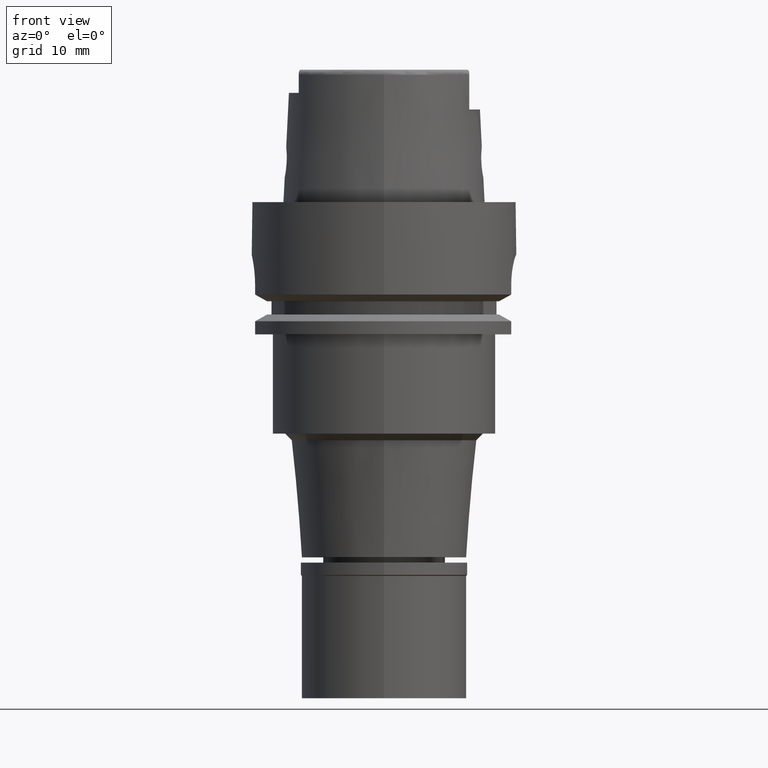
[diagram: clean part render]
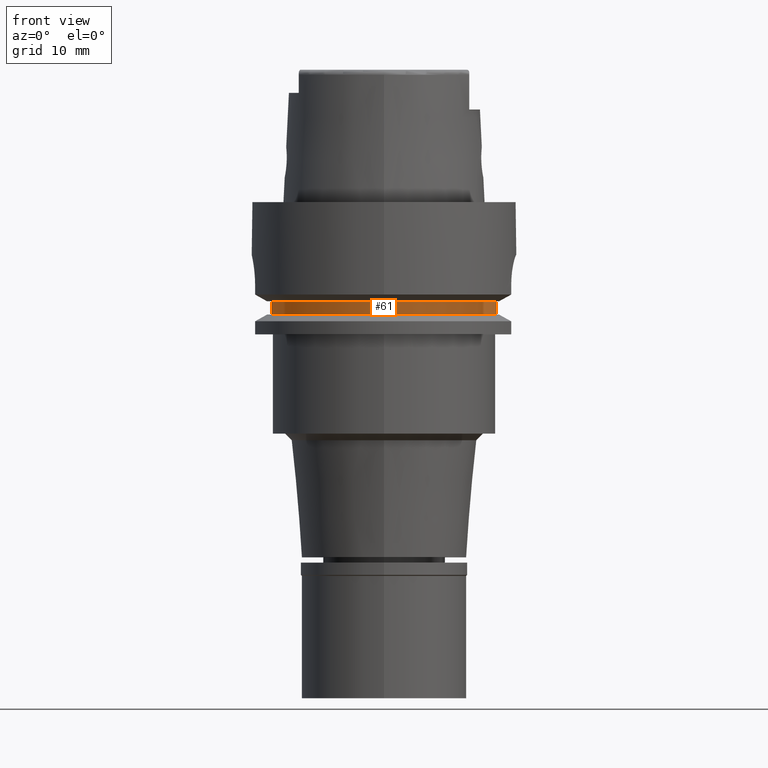
[diagram: same view with one face highlighted and labeled with its STEP entity id]
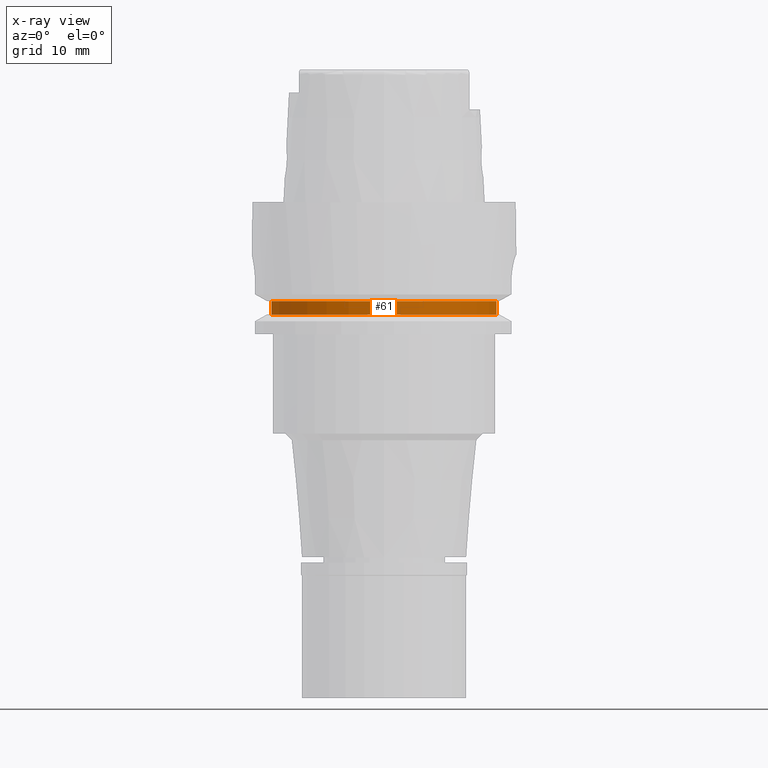
[diagram: x-ray of the same camera — body ghosted, the highlighted face saturated]
A machine part, front view. The second image highlights one B-rep face of the part: STEP entity #61.
The next image is the same camera in x-ray: the body ghosted, the highlighted face saturated — about 0% of this face is hidden behind the body in this view.
In plain terms, the highlighted cylindrical surface (partial cylindrical patch) has radius 17.4 mm, axis along (0, 0, -1).
Its self-contained STEP definition (entity closure, byte-faithful):
#31 = VERTEX_POINT ( 'NONE', #101 ) ;
#61 = ADVANCED_FACE ( 'NONE', ( #1823 ), #5149, .T. ) ;
#101 = CARTESIAN_POINT ( 'NONE',  ( -17.00000000000000000, -3.709447398197999846, -17.00000000000000000 ) ) ;
#115 = CIRCLE ( 'NONE', #3270, 17.39999999999999858 ) ;
#238 = LINE ( 'NONE', #1890, #570 ) ;
#428 = EDGE_CURVE ( 'NONE', #31, #1064, #4101, .T. ) ;
#541 = CARTESIAN_POINT ( 'NONE',  ( 0.0000000000000000000, 1.523950476858999865E-14, 24.44000000000000128 ) ) ;
#570 = VECTOR ( 'NONE', #4797, 1000.000000000000000 ) ;
#713 = CIRCLE ( 'NONE', #4846, 17.40000000000000213 ) ;
#831 = DIRECTION ( 'NONE',  ( 0.0000000000000000000, -1.000000000000000000, 0.0000000000000000000 ) ) ;
#1064 = VERTEX_POINT ( 'NONE', #5123 ) ;
#1128 = VERTEX_POINT ( 'NONE', #4024 ) ;
#1201 = EDGE_CURVE ( 'NONE', #1128, #2367, #238, .T. ) ;
#1440 = VECTOR ( 'NONE', #1616, 1000.000000000000000 ) ;
#1454 = ORIENTED_EDGE ( 'NONE', *, *, #428, .F. ) ;
#1616 = DIRECTION ( 'NONE',  ( 0.0000000000000000000, -3.730349362740999923E-14, 1.000000000000000000 ) ) ;
#1685 = CARTESIAN_POINT ( 'NONE',  ( 17.00000000000000000, -3.709447398197999846, -17.00000000000000000 ) ) ;
#1823 = FACE_OUTER_BOUND ( 'NONE', #5299, .T. ) ;
#1890 = CARTESIAN_POINT ( 'NONE',  ( 17.00000000000000000, -3.709447398197999846, -15.00000000000000000 ) ) ;
#2367 = VERTEX_POINT ( 'NONE', #1685 ) ;
#2436 = EDGE_CURVE ( 'NONE', #31, #2367, #713, .T. ) ;
#2593 = ORIENTED_EDGE ( 'NONE', *, *, #4279, .T. ) ;
#2967 = CARTESIAN_POINT ( 'NONE',  ( 0.0000000000000000000, 1.523950476858999865E-14, -17.00000000000000000 ) ) ;
#3270 = AXIS2_PLACEMENT_3D ( 'NONE', #4136, #4087, #831 ) ;
#3504 = DIRECTION ( 'NONE',  ( 0.0000000000000000000, 0.0000000000000000000, 1.000000000000000000 ) ) ;
#3916 = DIRECTION ( 'NONE',  ( 0.0000000000000000000, -1.000000000000000000, 0.0000000000000000000 ) ) ;
#4024 = CARTESIAN_POINT ( 'NONE',  ( 17.00000000000000000, -3.709447398197999846, -15.00000000000000000 ) ) ;
#4087 = DIRECTION ( 'NONE',  ( 0.0000000000000000000, 0.0000000000000000000, -1.000000000000000000 ) ) ;
#4101 = LINE ( 'NONE', #4475, #1440 ) ;
#4136 = CARTESIAN_POINT ( 'NONE',  ( 0.0000000000000000000, 1.523950476858999865E-14, -15.00000000000000000 ) ) ;
#4230 = ORIENTED_EDGE ( 'NONE', *, *, #2436, .T. ) ;
#4232 = ORIENTED_EDGE ( 'NONE', *, *, #1201, .F. ) ;
#4279 = EDGE_CURVE ( 'NONE', #1128, #1064, #115, .T. ) ;
#4304 = DIRECTION ( 'NONE',  ( -0.9770114942528667079, -0.2131866320803924297, 0.0000000000000000000 ) ) ;
#4475 = CARTESIAN_POINT ( 'NONE',  ( -17.00000000000000000, -3.709447398197999846, -17.00000000000000000 ) ) ;
#4797 = DIRECTION ( 'NONE',  ( 0.0000000000000000000, -3.663735981262999544E-14, -1.000000000000000000 ) ) ;
#4846 = AXIS2_PLACEMENT_3D ( 'NONE', #2967, #3504, #4304 ) ;
#5123 = CARTESIAN_POINT ( 'NONE',  ( -17.00000000000000000, -3.709447398197999846, -15.00000000000000000 ) ) ;
#5132 = AXIS2_PLACEMENT_3D ( 'NONE', #541, #5173, #3916 ) ;
#5149 = CYLINDRICAL_SURFACE ( 'NONE', #5132, 17.39999999999999858 ) ;
#5173 = DIRECTION ( 'NONE',  ( 0.0000000000000000000, 0.0000000000000000000, -1.000000000000000000 ) ) ;
#5299 = EDGE_LOOP ( 'NONE', ( #4230, #4232, #2593, #1454 ) ) ;